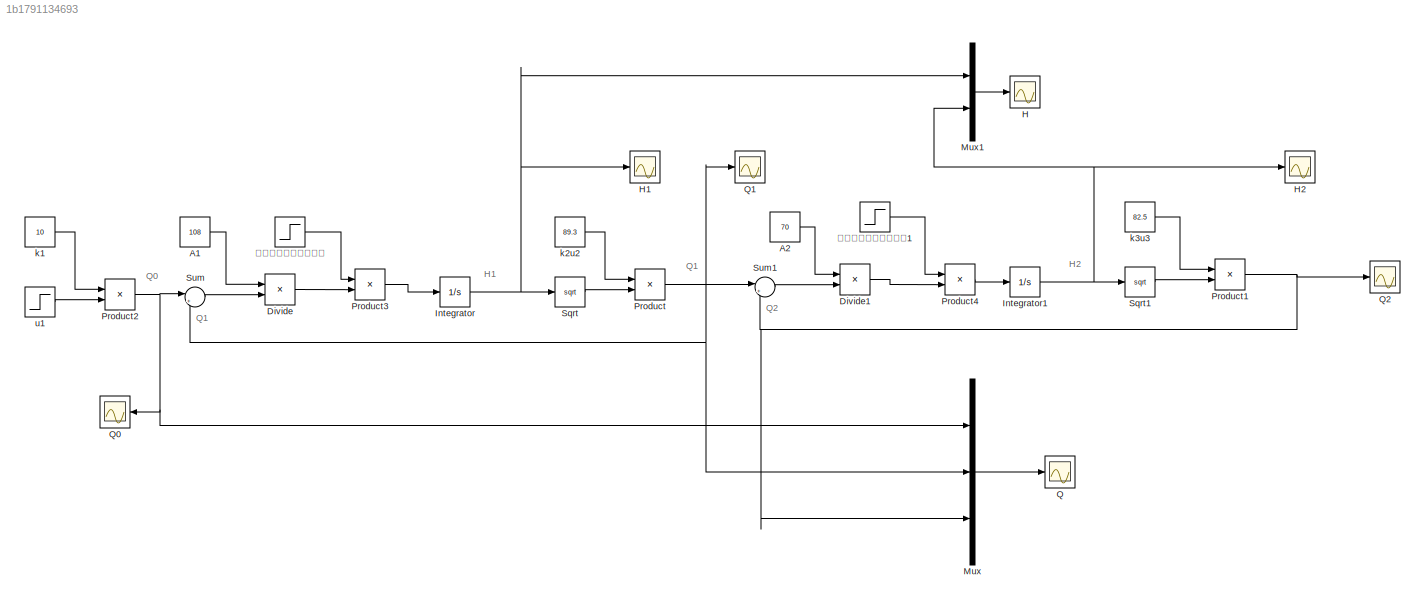
MODEL slx_1b1791134693
KIND model
CONFIG AbsTol = auto
CONFIG EnableMultiTasking = off
CONFIG FixedStep = auto
CONFIG MaxStep = auto
CONFIG MinStep = auto
CONFIG RelTol = 1e-3
CONFIG SampleTimeConstraint = Unconstrained
CONFIG SolverName = VariableStepAuto
CONFIG StartTime = 0.0
CONFIG StopTime = 50
BLOCK [Constant] A1
  Value = 108
BLOCK [Constant] A2
  Value = 70
BLOCK [Product] Divide
  Inputs = /*
  Ports = [2, 1]
BLOCK [Product] Divide1
  Inputs = /*
  Ports = [2, 1]
BLOCK [Scope] H
  Floating = off
  NumInputPorts = 1
  Ports = [1]
  ScopeSpecificationString = Simulink.scopes.TimeScopeBlockCfg('CurrentConfiguration', extmgr.ConfigurationSet(extmgr.Configuration('Core','General UI',true),extmgr.Configuration('Core','Source UI',true),extmgr.Configuration('Sources','WiredSimulink',true,'DataLoggingVariableName','ScopeData6'),extmgr.Configuration('Visuals','Time Domain',true,'SerializedDisplays',{struct('MinYLimReal','9.59392','MaxYLimReal','13.37845','YLab...<+1481ch>
BLOCK [Scope] H1
  Floating = off
  NumInputPorts = 1
  Ports = [1]
  ScopeSpecificationString = Simulink.scopes.TimeScopeBlockCfg('CurrentConfiguration', extmgr.ConfigurationSet(extmgr.Configuration('Core','General UI',true),extmgr.Configuration('Core','Source UI',true),extmgr.Configuration('Sources','WiredSimulink',true),extmgr.Configuration('Visuals','Time Domain',true,'SerializedDisplays',{struct('MinYLimReal','-4.6875','MaxYLimReal','142.1875','YLabelReal','','MinYLimMag','0.00000','MaxY...<+1361ch>
BLOCK [Scope] H2
  Floating = off
  NumInputPorts = 1
  Ports = [1]
  ScopeSpecificationString = Simulink.scopes.TimeScopeBlockCfg('CurrentConfiguration', extmgr.ConfigurationSet(extmgr.Configuration('Core','General UI',true),extmgr.Configuration('Core','Source UI',true),extmgr.Configuration('Sources','WiredSimulink',true,'DataLoggingVariableName','ScopeData2'),extmgr.Configuration('Visuals','Time Domain',true,'SerializedDisplays',{struct('MinYLimReal','-44.32795','MaxYLimReal','528.95155','Y...<+1409ch>
BLOCK [Integrator] Integrator
  InitialCondition = 10
  Ports = [1, 1]
BLOCK [Integrator] Integrator1
  InitialCondition = 13
  Ports = [1, 1]
BLOCK [Mux] Mux
  DisplayOption = bar
  Inputs = 3
  Ports = [3, 1]
BLOCK [Mux] Mux1
  DisplayOption = bar
  Inputs = 2
  Ports = [2, 1]
BLOCK [Product] Product
  Ports = [2, 1]
BLOCK [Product] Product1
  Ports = [2, 1]
BLOCK [Product] Product2
  Ports = [2, 1]
BLOCK [Product] Product3
  Ports = [2, 1]
BLOCK [Product] Product4
  Ports = [2, 1]
BLOCK [Scope] Q
  Floating = off
  NumInputPorts = 1
  Ports = [1]
  ScopeSpecificationString = Simulink.scopes.TimeScopeBlockCfg('CurrentConfiguration', extmgr.ConfigurationSet(extmgr.Configuration('Core','General UI',true),extmgr.Configuration('Core','Source UI',true),extmgr.Configuration('Sources','WiredSimulink',true,'DataLoggingVariableName','ScopeData5'),extmgr.Configuration('Visuals','Time Domain',true,'SerializedDisplays',{struct('MinYLimReal','93.2945','MaxYLimReal','1980.34948','YL...<+1425ch>
BLOCK [Scope] Q0
  Floating = off
  NumInputPorts = 1
  Ports = [1]
  ScopeSpecificationString = Simulink.scopes.TimeScopeBlockCfg('CurrentConfiguration', extmgr.ConfigurationSet(extmgr.Configuration('Core','General UI',true),extmgr.Configuration('Core','Source UI',true),extmgr.Configuration('Sources','WiredSimulink',true,'DataLoggingVariableName','ScopeData4'),extmgr.Configuration('Visuals','Time Domain',true,'SerializedDisplays',{struct('MinYLimReal','182.00000','MaxYLimReal','382.00000','Y...<+1410ch>
BLOCK [Scope] Q1
  Floating = off
  NumInputPorts = 1
  Ports = [1]
  ScopeSpecificationString = Simulink.scopes.TimeScopeBlockCfg('CurrentConfiguration', extmgr.ConfigurationSet(extmgr.Configuration('Core','General UI',true),extmgr.Configuration('Core','Source UI',true),extmgr.Configuration('Sources','WiredSimulink',true,'DataLoggingVariableName','ScopeData1'),extmgr.Configuration('Visuals','Time Domain',true,'SerializedDisplays',{struct('MinYLimReal','191.64795','MaxYLimReal','1099.08241','...<+1413ch>
BLOCK [Scope] Q2
  Floating = off
  NumInputPorts = 1
  Ports = [1]
  ScopeSpecificationString = Simulink.scopes.TimeScopeBlockCfg('CurrentConfiguration', extmgr.ConfigurationSet(extmgr.Configuration('Core','General UI',true),extmgr.Configuration('Core','Source UI',true),extmgr.Configuration('Sources','WiredSimulink',true,'DataLoggingVariableName','ScopeData3'),extmgr.Configuration('Visuals','Time Domain',true,'SerializedDisplays',{struct('MinYLimReal','110.68473','MaxYLimReal','1978.41723','...<+1414ch>
BLOCK [Sqrt] Sqrt
BLOCK [Sqrt] Sqrt1
BLOCK [Sum] Sum
  Inputs = |+-
  Ports = [2, 1]
BLOCK [Sum] Sum1
  Inputs = |+-
  Ports = [2, 1]
BLOCK [Constant] k1
  Value = 10
BLOCK [Constant] k2u2
  Value = 89.3
BLOCK [Constant] k3u3
  Value = 82.5
BLOCK [Step] u1
  After = 28.2
  Before = 28.2
  SampleTime = 0
  Time = 5
BLOCK [Step] 屏蔽阶跃前的积分信号
  SampleTime = 0
  Time = 5
BLOCK [Step] 屏蔽阶跃前的积分信号1
  SampleTime = 0
  Time = 5
ANNOTATION (root): H1
ANNOTATION (root): H2
ANNOTATION (root): Q0
ANNOTATION (root): Q1
ANNOTATION (root): Q2
LINE A1:1 -> Divide:1
LINE A2:1 -> Divide1:1
LINE Divide1:1 -> Product4:2
LINE Divide:1 -> Product3:2
NET Integrator1:1 -> H2:1, Mux1:2, Sqrt1:1
NET Integrator:1 -> H1:1, Mux1:1, Sqrt:1
LINE Mux1:1 -> H:1
LINE Mux:1 -> Q:1
NET Product1:1 -> Mux:3, Q2:1, Sum1:2
NET Product2:1 -> Mux:1, Q0:1, Sum:1
LINE Product3:1 -> Integrator:1
LINE Product4:1 -> Integrator1:1
NET Product:1 -> Mux:2, Q1:1, Sum1:1, Sum:2
LINE Sqrt1:1 -> Product1:2
LINE Sqrt:1 -> Product:2
LINE Sum1:1 -> Divide1:2
LINE Sum:1 -> Divide:2
LINE k1:1 -> Product2:1
LINE k2u2:1 -> Product:1
LINE k3u3:1 -> Product1:1
LINE u1:1 -> Product2:2
LINE 屏蔽阶跃前的积分信号1:1 -> Product4:1
LINE 屏蔽阶跃前的积分信号:1 -> Product3:1
note: NET lines group one-source signal fan-out (src -> all destinations, sorted); 1:1 wires keep LINE
